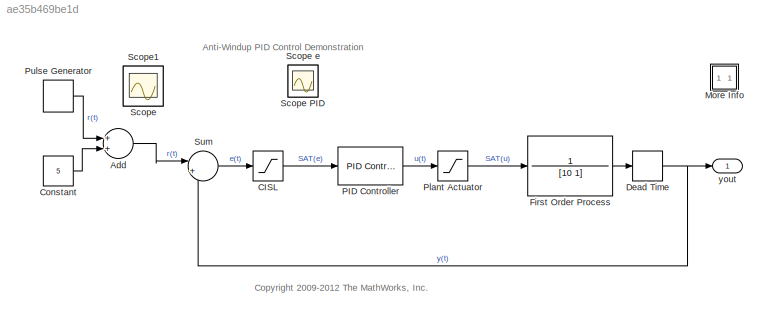
MODEL slx_ae35b469be1d
KIND model
CONFIG AbsTol = auto
CONFIG EnableMultiTasking = on
CONFIG FixedStep = 0.1
CONFIG MaxStep = auto
CONFIG MinStep = auto
CONFIG RelTol = 1e-5
CONFIG SampleTimeConstraint = Unconstrained
CONFIG Solver = ode3
CONFIG SolverName = ode3
CONFIG StartTime = 0.0
CONFIG StopTime = 200
BLOCK [Sum] Add
  InputSameDT = off
  OutDataTypeStr = Inherit: Inherit via internal rule
  Ports = [2, 1]
  SaturateOnIntegerOverflow = off
BLOCK [Saturate] CISL
  InputPortMap = u0
  LowerLimit = -cisl
  Ports = [1, 1]
  UpperLimit = cisl
BLOCK [Constant] Constant
  Value = 5
BLOCK [TransportDelay] Dead Time
  BufferSize = 2048
  DelayTime = 2
  Ports = [1, 1]
BLOCK [TransferFcn] First Order Process
  Denominator = [10 1]
  Numerator = 1
BLOCK [SubSystem] More Info
  OpenFcn = showdemo('sldemo_antiwindup')
  Ports = []
  RequestExecContextInheritance = off
  Variant = off
BLOCK [Reference] PID Controller  REF=simulink/Continuous/PID Controller
  Ports = [1, 1]
  SourceBlock = simulink/Continuous/PID Controller
  SourceProductBaseCode = SL
  SourceProductName = Simulink
  SourceType = PID 1dof
BLOCK [Saturate] Plant Actuator
  InputPortMap = u0
  LowerLimit = -limit
  Ports = [1, 1]
  UpperLimit = limit
BLOCK [DiscretePulseGenerator] Pulse Generator
  Amplitude = 5
  Period = 200
  Ports = [0, 1]
  PulseType = Time based
  PulseWidth = 50
BLOCK [Scope] Scope
  IOType = viewer
  NumInputPorts = 1
  Ports = []
  ScopeSpecificationString = Simulink.scopes.TimeScopeBlockCfg('CurrentConfiguration', extmgr.ConfigurationSet(extmgr.Configuration('Core','General UI',true),extmgr.Configuration('Core','Source UI',true),extmgr.Configuration('Sources','WiredSimulink',true,'DataLoggingMaxPoints','100000','DataLoggingLimitDataPoints',true,'DataLoggingSaveFormat','Array','DataLoggingDecimation','1','DataLoggingDecimateData',true),extmgr.Configur...<+1715ch>
BLOCK [Scope] Scope PID
  IOType = viewer
  NumInputPorts = 1
  Ports = []
  ScopeSpecificationString = Simulink.scopes.TimeScopeBlockCfg('CurrentConfiguration', extmgr.ConfigurationSet(extmgr.Configuration('Core','General UI',true),extmgr.Configuration('Core','Source UI',true),extmgr.Configuration('Sources','WiredSimulink',true,'DataLoggingVariableName','ScopeData1'),extmgr.Configuration('Visuals','Time Domain',true,'SerializedDisplays',{struct('MinYLimReal','-16.31384','MaxYLimReal','20.72155','YL...<+1479ch>
BLOCK [Scope] Scope e
  IOType = viewer
  NumInputPorts = 1
  Ports = []
  ScopeSpecificationString = Simulink.scopes.TimeScopeBlockCfg('CurrentConfiguration', extmgr.ConfigurationSet(extmgr.Configuration('Core','General UI',true),extmgr.Configuration('Core','Source UI',true),extmgr.Configuration('Sources','WiredSimulink',true,'DataLoggingVariableName','ScopeData1'),extmgr.Configuration('Visuals','Time Domain',true,'SerializedDisplays',{struct('MinYLimReal','-4.25681','MaxYLimReal','11.58409','YLa...<+1452ch>
BLOCK [Scope] Scope1
  IOType = viewer
  NumInputPorts = 1
  Ports = []
  ScopeSpecificationString = Simulink.scopes.TimeScopeBlockCfg('CurrentConfiguration', extmgr.ConfigurationSet(extmgr.Configuration('Core','General UI',true),extmgr.Configuration('Core','Source UI',true),extmgr.Configuration('Sources','WiredSimulink',true,'DataLoggingVariableName','ScopeData1','DataLoggingMaxPoints','100000','DataLoggingLimitDataPoints',true,'DataLoggingSaveFormat','Array','DataLoggingDecimation','1','DataLog...<+1776ch>
BLOCK [Sum] Sum
  IconShape = round
  InputSameDT = off
  Inputs = |+-
  OutDataTypeStr = Inherit: Inherit via internal rule
  Ports = [2, 1]
  SaturateOnIntegerOverflow = off
BLOCK [Outport] yout
  IconDisplay = Port number
ANNOTATION (root): Anti-Windup PID Control Demonstration
ANNOTATION (root): <copyright redacted>
LINE Add:1 -> Sum:1
LINE CISL:1 -> PID Controller:1
LINE Constant:1 -> Add:2
NET Dead Time:1 -> Sum:2, yout:1
LINE First Order Process:1 -> Dead Time:1
LINE PID Controller:1 -> Plant Actuator:1
LINE Plant Actuator:1 -> First Order Process:1
LINE Pulse Generator:1 -> Add:1
LINE Sum:1 -> CISL:1
note: NET lines group one-source signal fan-out (src -> all destinations, sorted); 1:1 wires keep LINE
